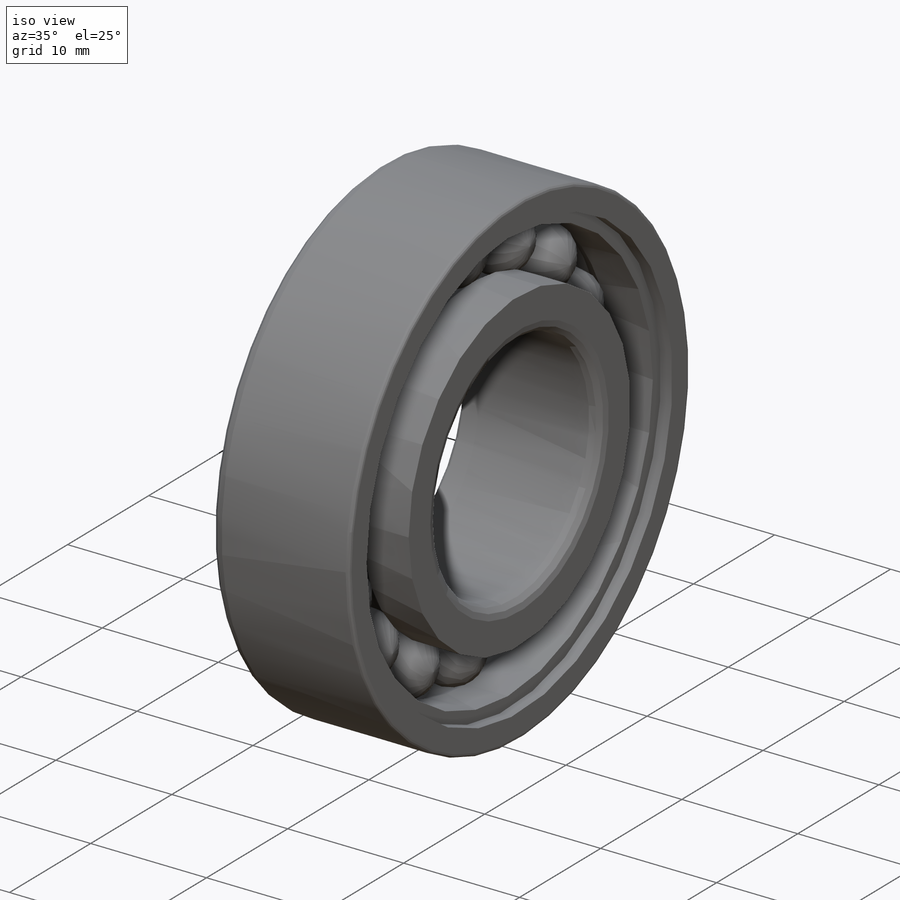
[diagram: iso view]
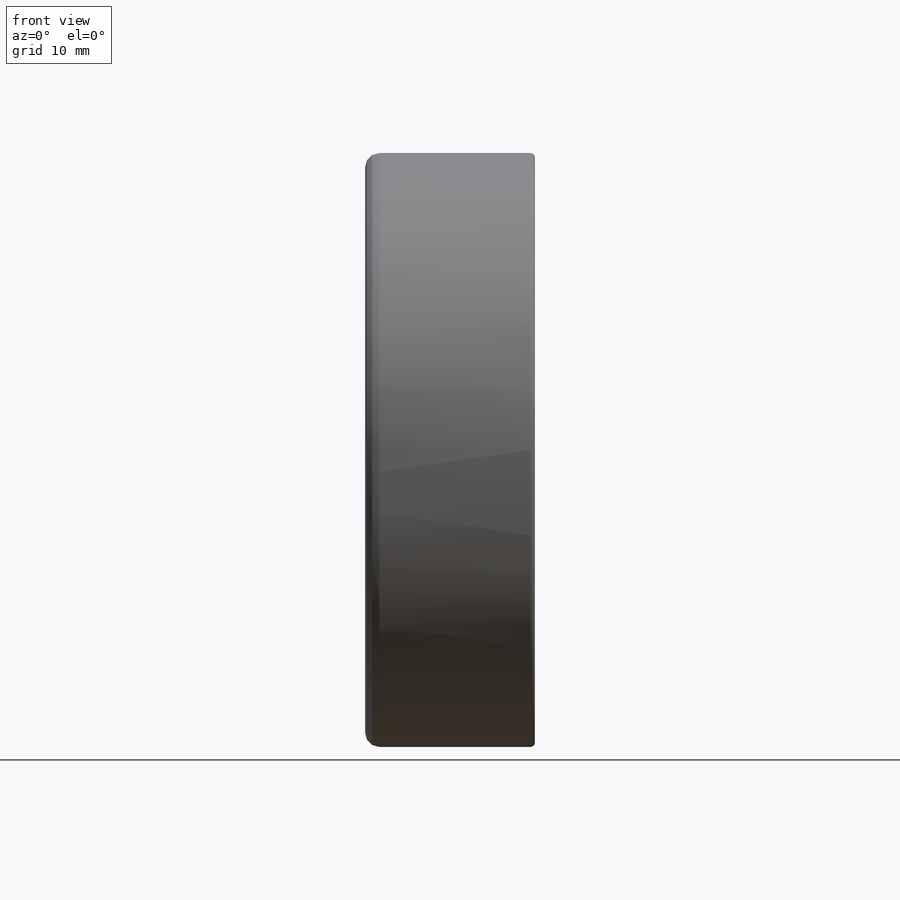
[diagram: front view]
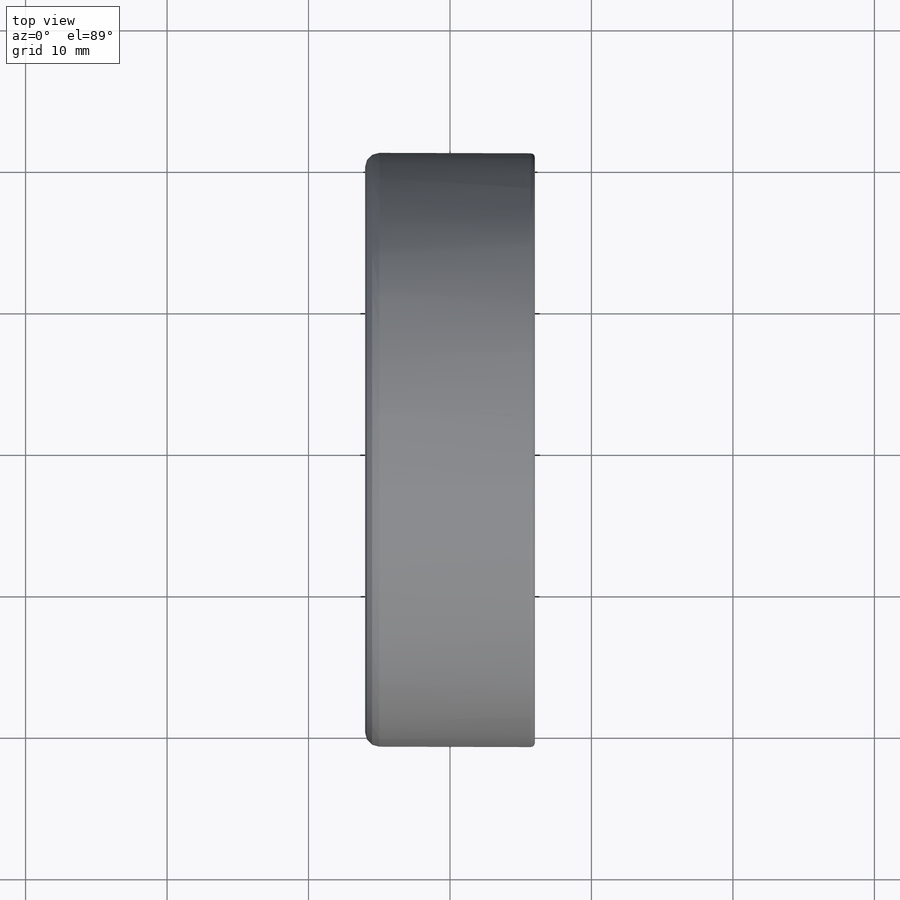
[diagram: top view]
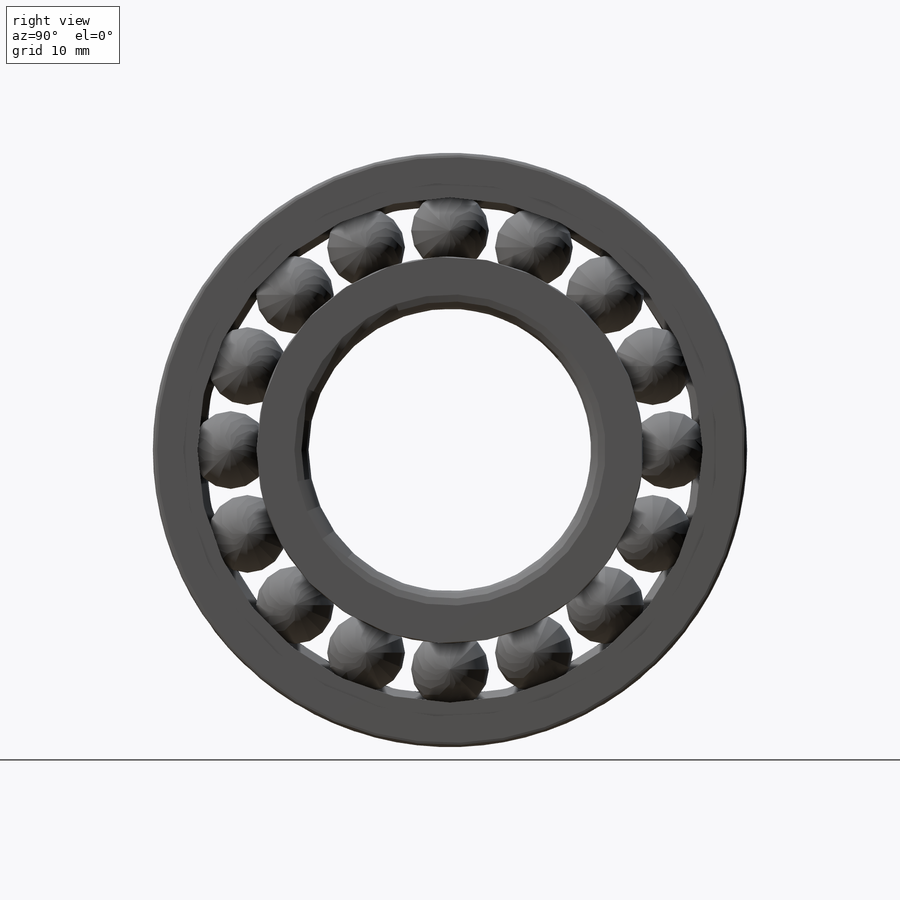
[diagram: right view]
SOLIDWORKS PART (.sldprt)
format: sldprt  version: not decoded by parser v0  size: 533,504 bytes
history: native  units: mm
features: sketch x3, revolve x3, fillet x2, material x1, pattern_circular x1 (+12 scaffold rows collapsed)
feature tree (22):
  scaffold x12  (default folders/planes/origin — collapsed)
  material  "材质 <未指定>"
  sketch  "Sketch1"  dims[R=2.75mm D1=15.5mm]
  revolve  "Revolve1"  Angle=360deg
  sketch  "Sketch2"  dims[c1.D2=2.74mm c1.d=20.0mm c1.D1=15.5mm c1.D3=~27.333333mm c1.D4=4.0mm c1.T=12.0mm c1.D6=2.0mm c1.B=12.0mm c2.D4=2.0mm c2.D6=6.0mm]
  revolve  "Revolve2"  Angle=360deg
  sketch  "Sketch3"  dims[c1.D4=2.74mm c1.D1=15.5mm c1.B=12.0mm c1.D2=2.0mm c1.DD=42.0mm c1.D3=~35.706667mm c1.D5=~34.666667mm c1.D6=1.0mm c1.D7=1.0mm c2.D2=6.0mm]
  revolve  "Revolve3"  Angle=360deg
  pattern_circular  "Circular-Pattern1"  Count=16 Angle=360deg m=16
  fillet  "Fillet1"  Radius=1mm r=1mm
  fillet  "Fillet2"  Radius=0.3mm r1=0.3mm
decode coverage: 9 of 9 modeling features carry decoded parameters
note: ~ marks probable driven/reference dimensions
note: suppression state not decoded; provenance and decode notes live in map.json
